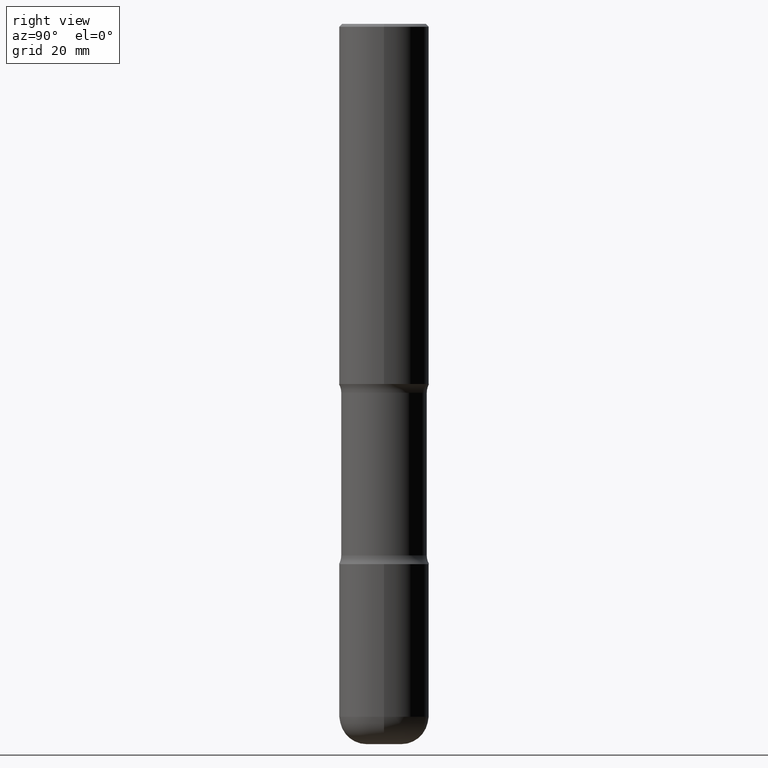
[diagram: clean part render]
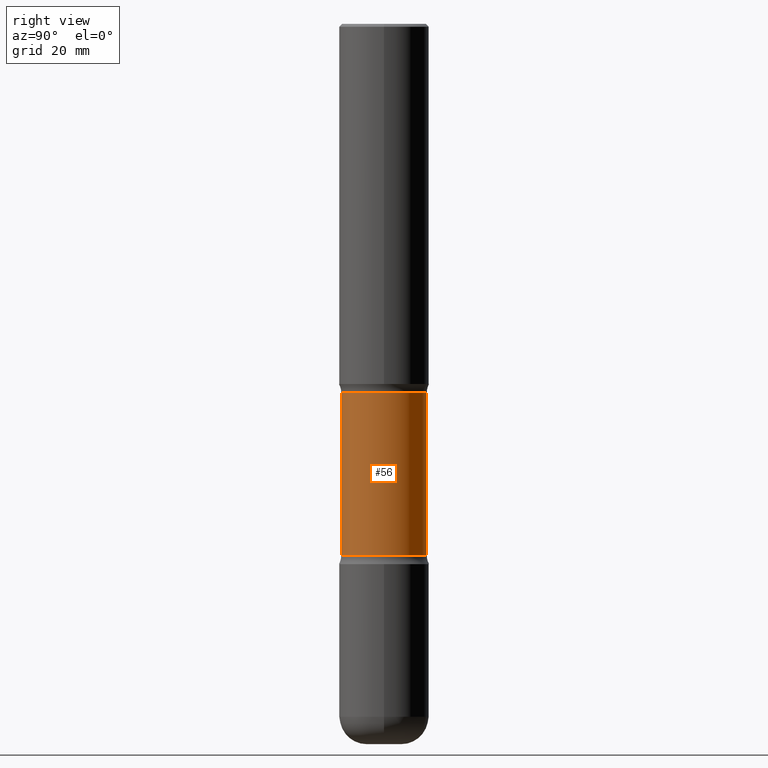
[diagram: same view with one face highlighted and labeled with its STEP entity id]
A machine part, right view. The second image highlights one B-rep face of the part: STEP entity #56.
In plain terms, the highlighted cylindrical surface (partial cylindrical patch) has radius 7.5406 mm, axis along (0, -0, -1).
Its self-contained STEP definition (entity closure, byte-faithful):
#9 = DIRECTION ( 'NONE',  ( 2.521457479434076939E-29, -3.382661233743975076E-15, -1.000000000000000000 ) ) ;
#30 = CARTESIAN_POINT ( 'NONE',  ( 2.073067044938200360E-15, 0.2968749999999871214, -3.689484635215509289 ) ) ;
#31 = AXIS2_PLACEMENT_3D ( 'NONE', #285, #317, #357 ) ;
#47 = DIRECTION ( 'NONE',  ( 6.982962677686266711E-15, 1.000000000000000000, -3.680805717779217644E-15 ) ) ;
#56 = ADVANCED_FACE ( 'NONE', ( #450 ), #283, .T. ) ;
#59 = CARTESIAN_POINT ( 'NONE',  ( -2.090307983695953569E-15, -0.2968750000000091038, -2.560515364784489822 ) ) ;
#65 = CARTESIAN_POINT ( 'NONE',  ( 9.017921104037724021E-29, -1.288835204215942242E-14, -3.689484635215508401 ) ) ;
#76 = AXIS2_PLACEMENT_3D ( 'NONE', #434, #9, #47 ) ;
#83 = ORIENTED_EDGE ( 'NONE', *, *, #166, .T. ) ;
#90 = EDGE_LOOP ( 'NONE', ( #476, #83, #381, #478 ) ) ;
#94 = CARTESIAN_POINT ( 'NONE',  ( -2.090307983695922804E-15, -0.2968750000000128786, -3.689484635215507069 ) ) ;
#114 = DIRECTION ( 'NONE',  ( 2.521457479434076939E-29, -3.382661233743975076E-15, -1.000000000000000000 ) ) ;
#121 = VERTEX_POINT ( 'NONE', #206 ) ;
#166 = EDGE_CURVE ( 'NONE', #168, #435, #184, .T. ) ;
#168 = VERTEX_POINT ( 'NONE', #59 ) ;
#184 = LINE ( 'NONE', #276, #505 ) ;
#193 = LINE ( 'NONE', #408, #529 ) ;
#206 = CARTESIAN_POINT ( 'NONE',  ( 2.073067044938171961E-15, 0.2968749999999909517, -2.560515364784492043 ) ) ;
#223 = EDGE_CURVE ( 'NONE', #121, #168, #540, .T. ) ;
#263 = DIRECTION ( 'NONE',  ( 2.521457479434076939E-29, -3.382661233743974681E-15, -1.000000000000000000 ) ) ;
#276 = CARTESIAN_POINT ( 'NONE',  ( -2.036710343088299976E-15, -0.2968750000000173195, -4.999999999999999112 ) ) ;
#277 = VERTEX_POINT ( 'NONE', #30 ) ;
#283 = CYLINDRICAL_SURFACE ( 'NONE', #31, 0.2968750000000000000 ) ;
#285 = CARTESIAN_POINT ( 'NONE',  ( 1.232232987248685960E-28, -1.732138156284176685E-14, -5.000000000000000000 ) ) ;
#292 = DIRECTION ( 'NONE',  ( 6.982962677686265133E-15, 1.000000000000000000, -3.680805717779217644E-15 ) ) ;
#317 = DIRECTION ( 'NONE',  ( 2.521457479434076939E-29, -3.382661233743975076E-15, -1.000000000000000000 ) ) ;
#354 = EDGE_CURVE ( 'NONE', #277, #435, #496, .T. ) ;
#357 = DIRECTION ( 'NONE',  ( 6.982962677686266711E-15, 1.000000000000000000, -3.680805717779217644E-15 ) ) ;
#363 = DIRECTION ( 'NONE',  ( 2.521457479434076939E-29, -3.382661233743974681E-15, -1.000000000000000000 ) ) ;
#381 = ORIENTED_EDGE ( 'NONE', *, *, #354, .F. ) ;
#408 = CARTESIAN_POINT ( 'NONE',  ( 2.073067044938233492E-15, 0.2968749999999827360, -5.000000000000000888 ) ) ;
#434 = CARTESIAN_POINT ( 'NONE',  ( 6.171273093058203090E-29, -9.069431456984199816E-15, -2.560515364784490711 ) ) ;
#435 = VERTEX_POINT ( 'NONE', #94 ) ;
#450 = FACE_OUTER_BOUND ( 'NONE', #90, .T. ) ;
#468 = EDGE_CURVE ( 'NONE', #121, #277, #193, .T. ) ;
#472 = AXIS2_PLACEMENT_3D ( 'NONE', #65, #114, #292 ) ;
#476 = ORIENTED_EDGE ( 'NONE', *, *, #223, .T. ) ;
#478 = ORIENTED_EDGE ( 'NONE', *, *, #468, .F. ) ;
#496 = CIRCLE ( 'NONE', #472, 0.2968750000000000000 ) ;
#505 = VECTOR ( 'NONE', #263, 39.37007874015748143 ) ;
#529 = VECTOR ( 'NONE', #363, 39.37007874015748143 ) ;
#540 = CIRCLE ( 'NONE', #76, 0.2968750000000000000 ) ;